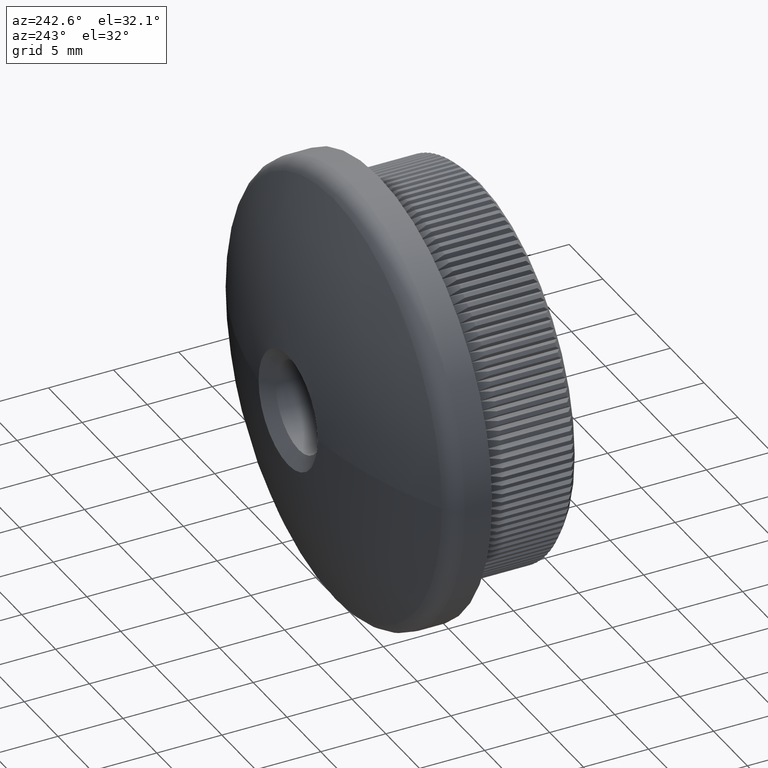
[diagram: clean part render]
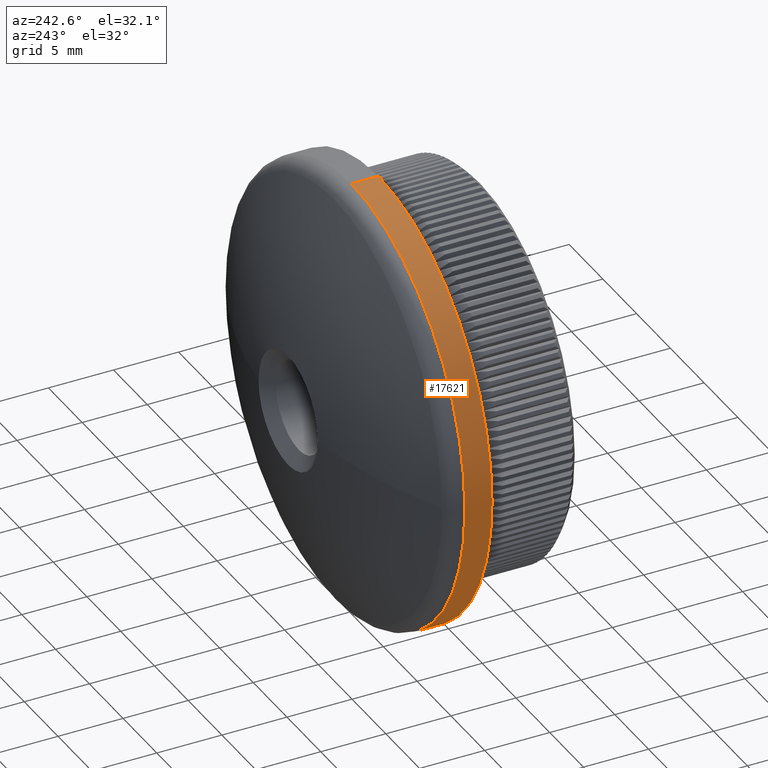
[diagram: same view with one face highlighted and labeled with its STEP entity id]
A machine part, auxiliary view. The second image highlights one B-rep face of the part: STEP entity #17621.
In plain terms, the highlighted cylindrical surface (partial cylindrical patch) has radius 16.85 mm, axis along (-0, -1, -0).
Its self-contained STEP definition (entity closure, byte-faithful):
#215 = ORIENTED_EDGE ( 'NONE', *, *, #23516, .F. ) ;
#948 = DIRECTION ( 'NONE',  ( 0.0000000000000000000, 0.0000000000000000000, -1.000000000000000000 ) ) ;
#2060 = CARTESIAN_POINT ( 'NONE',  ( 0.0000000000000000000, 9.885380484236923900, -16.85000000000000500 ) ) ;
#2231 = DIRECTION ( 'NONE',  ( 0.0000000000000000000, 0.0000000000000000000, -1.000000000000000000 ) ) ;
#2312 = CIRCLE ( 'NONE', #14915, 16.85000000000000100 ) ;
#2988 = VECTOR ( 'NONE', #24170, 1000.000000000000000 ) ;
#3483 = LINE ( 'NONE', #7581, #13110 ) ;
#5930 = DIRECTION ( 'NONE',  ( -0.0000000000000000000, -1.000000000000000000, -0.0000000000000000000 ) ) ;
#6617 = DIRECTION ( 'NONE',  ( -0.0000000000000000000, -1.000000000000000000, -0.0000000000000000000 ) ) ;
#7581 = CARTESIAN_POINT ( 'NONE',  ( 2.063529856563290600E-015, 0.0000000000000000000, 16.85000000000000500 ) ) ;
#7753 = CARTESIAN_POINT ( 'NONE',  ( 2.063529856563290600E-015, 9.885380484236923900, 16.85000000000000500 ) ) ;
#8283 = ORIENTED_EDGE ( 'NONE', *, *, #19583, .T. ) ;
#8419 = CARTESIAN_POINT ( 'NONE',  ( 0.0000000000000000000, 0.0000000000000000000, 0.0000000000000000000 ) ) ;
#8445 = LINE ( 'NONE', #24074, #2988 ) ;
#9385 = DIRECTION ( 'NONE',  ( -0.0000000000000000000, -1.000000000000000000, -0.0000000000000000000 ) ) ;
#9952 = AXIS2_PLACEMENT_3D ( 'NONE', #8419, #6617, #2231 ) ;
#11591 = CARTESIAN_POINT ( 'NONE',  ( 0.0000000000000000000, 7.799999999999999800, -16.85000000000000100 ) ) ;
#11752 = CARTESIAN_POINT ( 'NONE',  ( 0.0000000000000000000, 7.799999999999999800, 0.0000000000000000000 ) ) ;
#11821 = ORIENTED_EDGE ( 'NONE', *, *, #14585, .F. ) ;
#12736 = VERTEX_POINT ( 'NONE', #2060 ) ;
#13110 = VECTOR ( 'NONE', #9385, 1000.000000000000000 ) ;
#13227 = DIRECTION ( 'NONE',  ( -0.0000000000000000000, -1.000000000000000000, -0.0000000000000000000 ) ) ;
#13533 = DIRECTION ( 'NONE',  ( 0.0000000000000000000, 0.0000000000000000000, -1.000000000000000000 ) ) ;
#14585 = EDGE_CURVE ( 'NONE', #16371, #22438, #2312, .T. ) ;
#14915 = AXIS2_PLACEMENT_3D ( 'NONE', #11752, #5930, #13533 ) ;
#15406 = CIRCLE ( 'NONE', #25046, 16.85000000000000500 ) ;
#16371 = VERTEX_POINT ( 'NONE', #21111 ) ;
#17035 = FACE_OUTER_BOUND ( 'NONE', #23572, .T. ) ;
#17308 = EDGE_CURVE ( 'NONE', #18486, #12736, #15406, .T. ) ;
#17621 = ADVANCED_FACE ( 'NONE', ( #17035 ), #23725, .T. ) ;
#18486 = VERTEX_POINT ( 'NONE', #7753 ) ;
#19336 = CARTESIAN_POINT ( 'NONE',  ( 0.0000000000000000000, 9.885380484236923900, 0.0000000000000000000 ) ) ;
#19583 = EDGE_CURVE ( 'NONE', #12736, #22438, #8445, .T. ) ;
#21111 = CARTESIAN_POINT ( 'NONE',  ( 2.063529856563290200E-015, 7.799999999999999800, 16.85000000000000100 ) ) ;
#22438 = VERTEX_POINT ( 'NONE', #11591 ) ;
#23516 = EDGE_CURVE ( 'NONE', #18486, #16371, #3483, .T. ) ;
#23572 = EDGE_LOOP ( 'NONE', ( #215, #26119, #8283, #11821 ) ) ;
#23725 = CYLINDRICAL_SURFACE ( 'NONE', #9952, 16.85000000000000500 ) ;
#24074 = CARTESIAN_POINT ( 'NONE',  ( 0.0000000000000000000, 0.0000000000000000000, -16.85000000000000500 ) ) ;
#24170 = DIRECTION ( 'NONE',  ( -0.0000000000000000000, -1.000000000000000000, -0.0000000000000000000 ) ) ;
#25046 = AXIS2_PLACEMENT_3D ( 'NONE', #19336, #13227, #948 ) ;
#26119 = ORIENTED_EDGE ( 'NONE', *, *, #17308, .T. ) ;